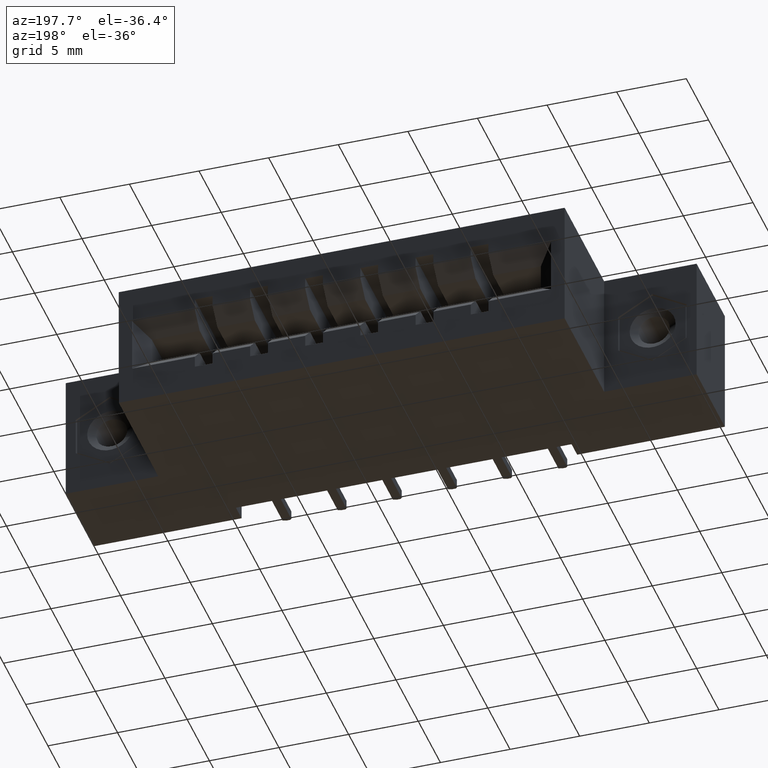
[diagram: clean part render]
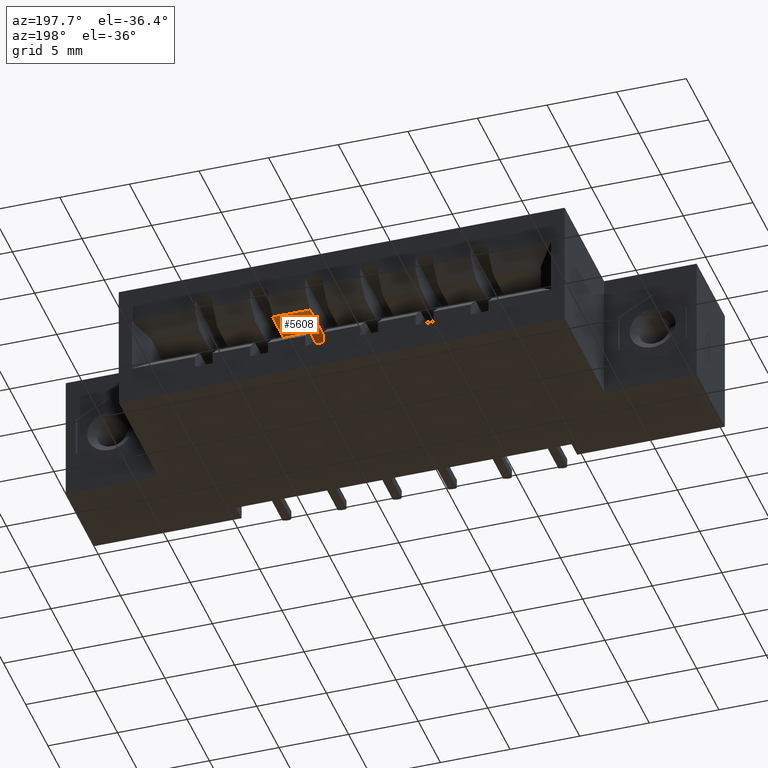
[diagram: same view with one face highlighted and labeled with its STEP entity id]
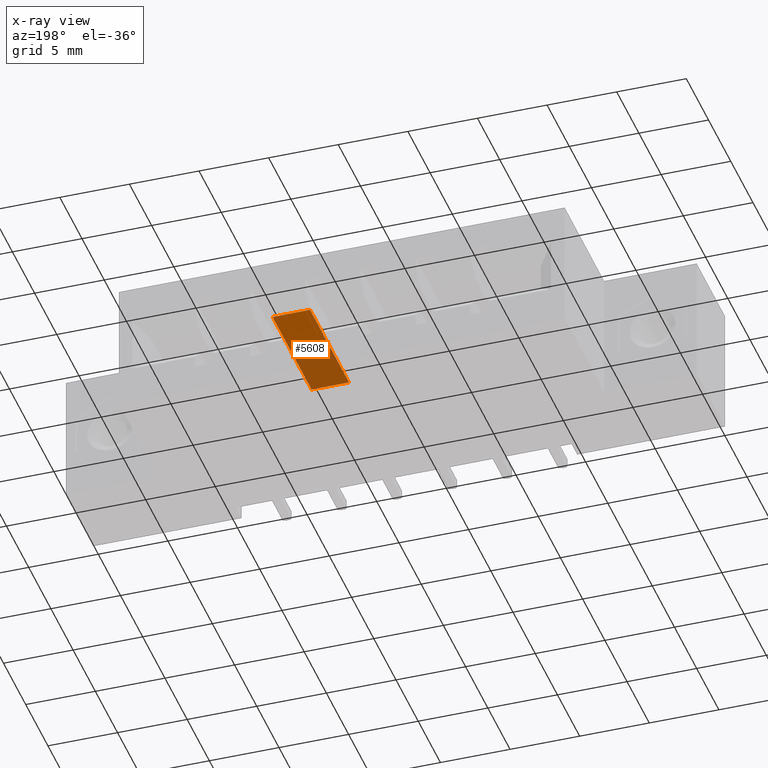
[diagram: x-ray of the same camera — body ghosted, the highlighted face saturated]
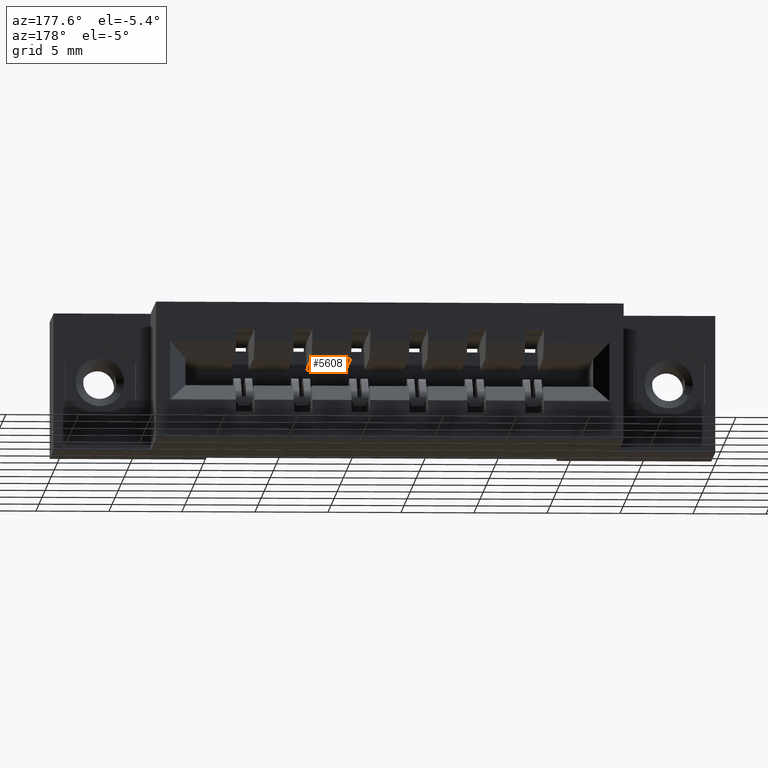
[diagram: same view with one face highlighted and labeled with its STEP entity id]
A machine part, auxiliary view. The second image highlights one B-rep face of the part: STEP entity #5608.
The next image is the same camera in x-ray: the body ghosted, the highlighted face saturated — about 61% of this face is hidden behind the body in this view.
A second angle (auxiliary view) of the same face is appended — the face is thin or edge-on in the first view.
In plain terms, the highlighted planar face has unit normal (-0, 0, 1).
Its self-contained STEP definition (entity closure, byte-faithful):
#153 = ORIENTED_EDGE ( 'NONE', *, *, #5595, .T. ) ;
#489 = CARTESIAN_POINT ( 'NONE',  ( 1.101000000000000000, 0.5579999999999999400, -0.1480000000000002400 ) ) ;
#525 = VERTEX_POINT ( 'NONE', #489 ) ;
#775 = EDGE_CURVE ( 'NONE', #903, #525, #8911, .T. ) ;
#820 = CARTESIAN_POINT ( 'NONE',  ( 0.3419999999999999200, 0.5579999999999999400, -0.1480000000000003000 ) ) ;
#903 = VERTEX_POINT ( 'NONE', #1472 ) ;
#1472 = CARTESIAN_POINT ( 'NONE',  ( 0.9949999999999998800, 0.5579999999999999400, -0.1480000000000002400 ) ) ;
#1655 = FACE_OUTER_BOUND ( 'NONE', #1800, .T. ) ;
#1700 = ORIENTED_EDGE ( 'NONE', *, *, #6631, .F. ) ;
#1800 = EDGE_LOOP ( 'NONE', ( #7953, #6988, #1700, #153 ) ) ;
#2200 = VECTOR ( 'NONE', #3991, 39.37007874015748100 ) ;
#2473 = CARTESIAN_POINT ( 'NONE',  ( 0.9949999999999998800, 0.5999999999999996400, -0.1480000000000002700 ) ) ;
#3119 = VECTOR ( 'NONE', #6100, 39.37007874015748100 ) ;
#3767 = VERTEX_POINT ( 'NONE', #3993 ) ;
#3868 = CARTESIAN_POINT ( 'NONE',  ( 1.101000000000000000, 0.5999999999999996400, -0.1480000000000002700 ) ) ;
#3991 = DIRECTION ( 'NONE',  ( 1.000000000000000000, 0.0000000000000000000, 1.241749088029209900E-016 ) ) ;
#3993 = CARTESIAN_POINT ( 'NONE',  ( 1.101000000000000000, 0.2119999999999998300, -0.1479999999999999400 ) ) ;
#3995 = DIRECTION ( 'NONE',  ( -1.241749088029209900E-016, 0.0000000000000000000, 1.000000000000000000 ) ) ;
#4783 = DIRECTION ( 'NONE',  ( 1.000000000000000000, 0.0000000000000000000, 1.241749088029209900E-016 ) ) ;
#5062 = VECTOR ( 'NONE', #4783, 39.37007874015748100 ) ;
#5579 = LINE ( 'NONE', #2473, #7248 ) ;
#5595 = EDGE_CURVE ( 'NONE', #6001, #903, #5579, .T. ) ;
#5608 = ADVANCED_FACE ( 'NONE', ( #1655 ), #6877, .F. ) ;
#5663 = AXIS2_PLACEMENT_3D ( 'NONE', #8375, #3995, #9099 ) ;
#5888 = CARTESIAN_POINT ( 'NONE',  ( 0.9949999999999998800, 0.2119999999999999400, -0.1480000000000002100 ) ) ;
#6001 = VERTEX_POINT ( 'NONE', #5888 ) ;
#6100 = DIRECTION ( 'NONE',  ( -0.0000000000000000000, 1.000000000000000000, -8.801056680619408300E-016 ) ) ;
#6181 = DIRECTION ( 'NONE',  ( -0.0000000000000000000, 1.000000000000000000, -8.801056680619408300E-016 ) ) ;
#6515 = EDGE_CURVE ( 'NONE', #3767, #525, #6989, .T. ) ;
#6631 = EDGE_CURVE ( 'NONE', #6001, #3767, #7798, .T. ) ;
#6877 = PLANE ( 'NONE',  #5663 ) ;
#6988 = ORIENTED_EDGE ( 'NONE', *, *, #6515, .F. ) ;
#6989 = LINE ( 'NONE', #3868, #3119 ) ;
#7248 = VECTOR ( 'NONE', #6181, 39.37007874015748100 ) ;
#7798 = LINE ( 'NONE', #9096, #2200 ) ;
#7953 = ORIENTED_EDGE ( 'NONE', *, *, #775, .T. ) ;
#8375 = CARTESIAN_POINT ( 'NONE',  ( 0.3419999999999999200, 0.2119999999999999400, -0.1480000000000003000 ) ) ;
#8911 = LINE ( 'NONE', #820, #5062 ) ;
#9096 = CARTESIAN_POINT ( 'NONE',  ( 0.3419999999999999200, 0.2119999999999999400, -0.1480000000000003000 ) ) ;
#9099 = DIRECTION ( 'NONE',  ( 1.000000000000000000, 0.0000000000000000000, 1.241749088029209900E-016 ) ) ;